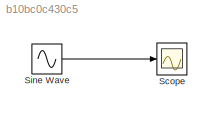
MODEL slx_b10bc0c430c5
KIND model
CONFIG PreLoadFcn = K = 8;
CONFIG StartFcn = open_scope
BLOCK [Scope] Scope
  DataFormat = StructureWithTime
  Floating = off
  NumInputPorts = 1
  Ports = [1]
  SampleTime = 0
  ShowLegends = off
BLOCK [Sin] Sine Wave
  Ports = [0, 1]
  SampleTime = 0
LINE Sine Wave:1 -> Scope:1
